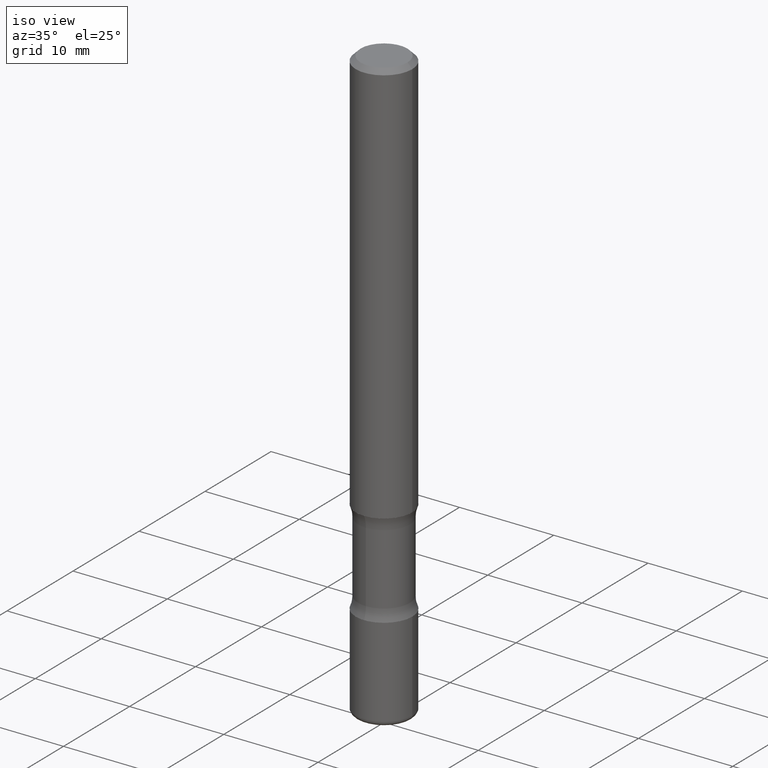
[diagram: clean part render]
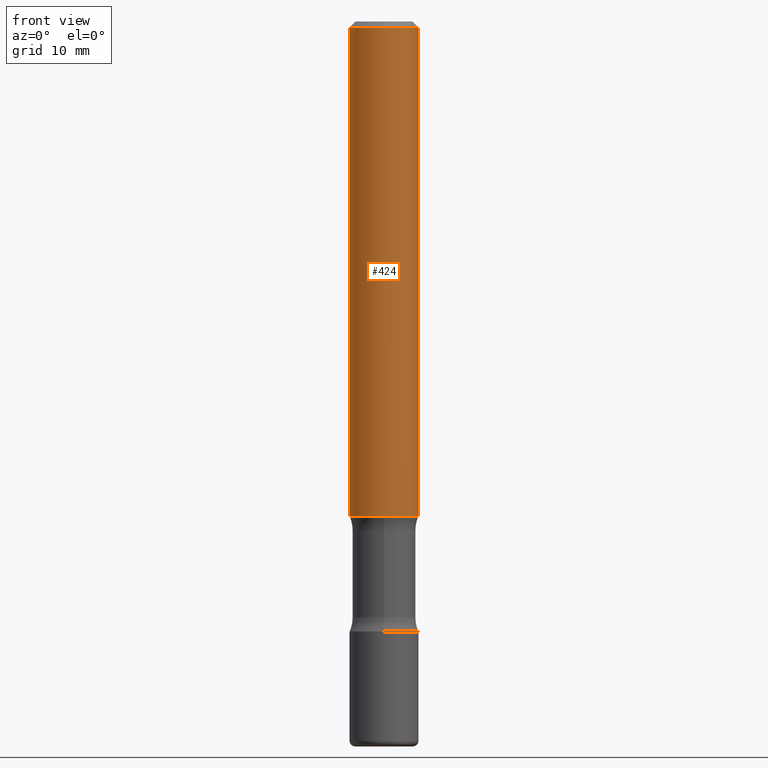
[diagram: tour spotlight — one face highlighted and labeled with its STEP entity id]
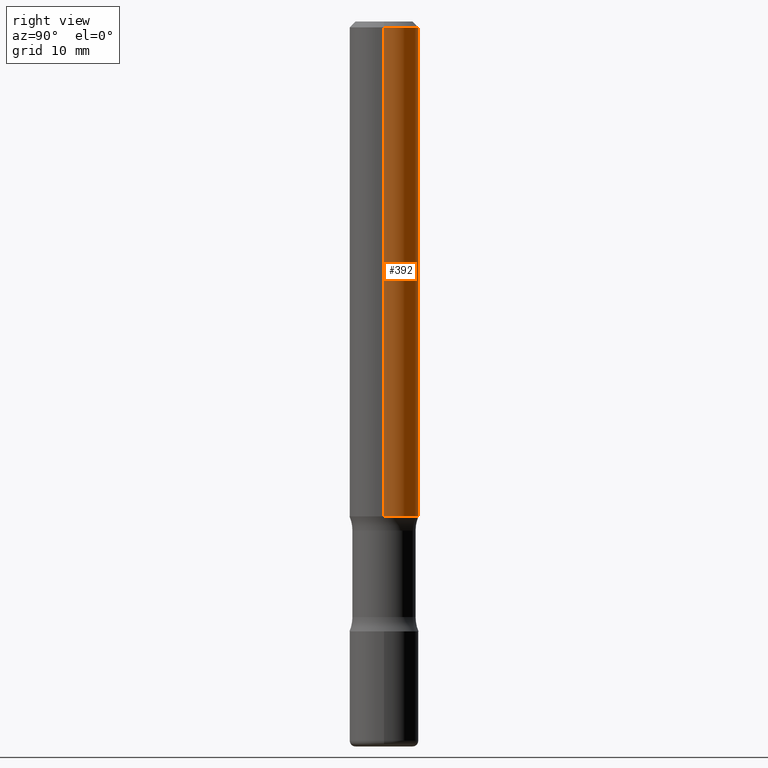
[diagram: tour spotlight — one face highlighted and labeled with its STEP entity id]
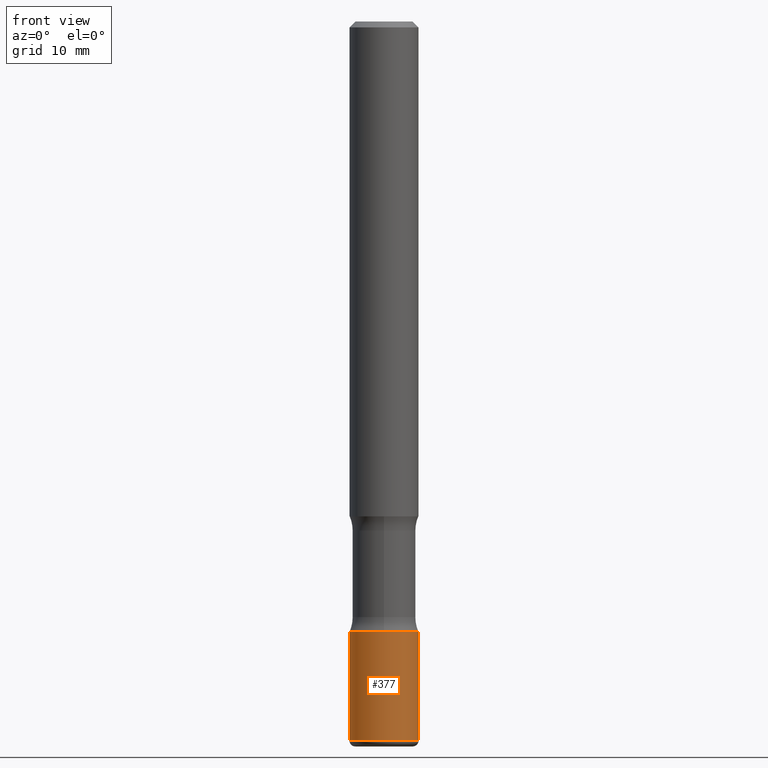
[diagram: tour spotlight — one face highlighted and labeled with its STEP entity id]
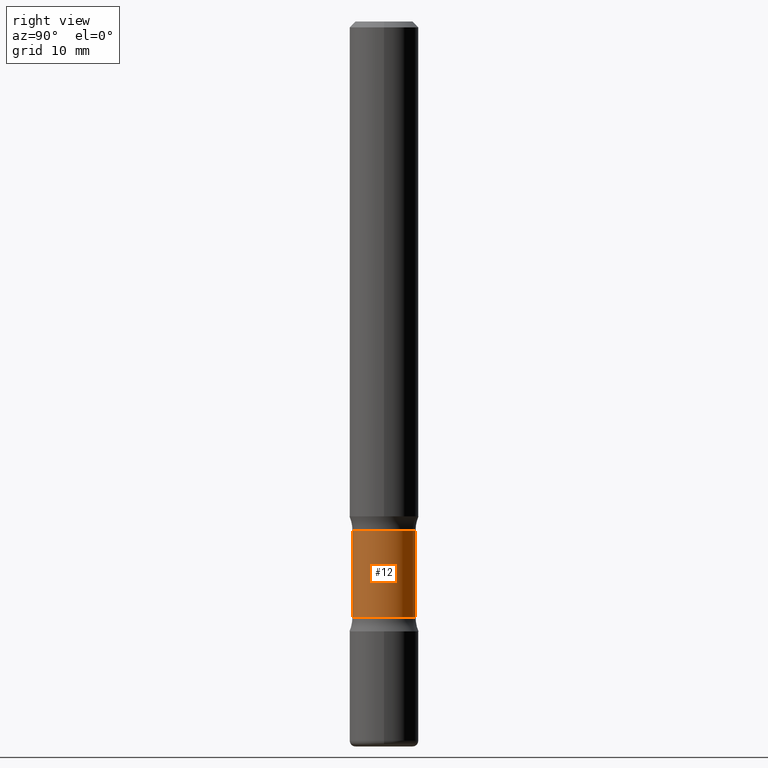
[diagram: tour spotlight — one face highlighted and labeled with its STEP entity id]
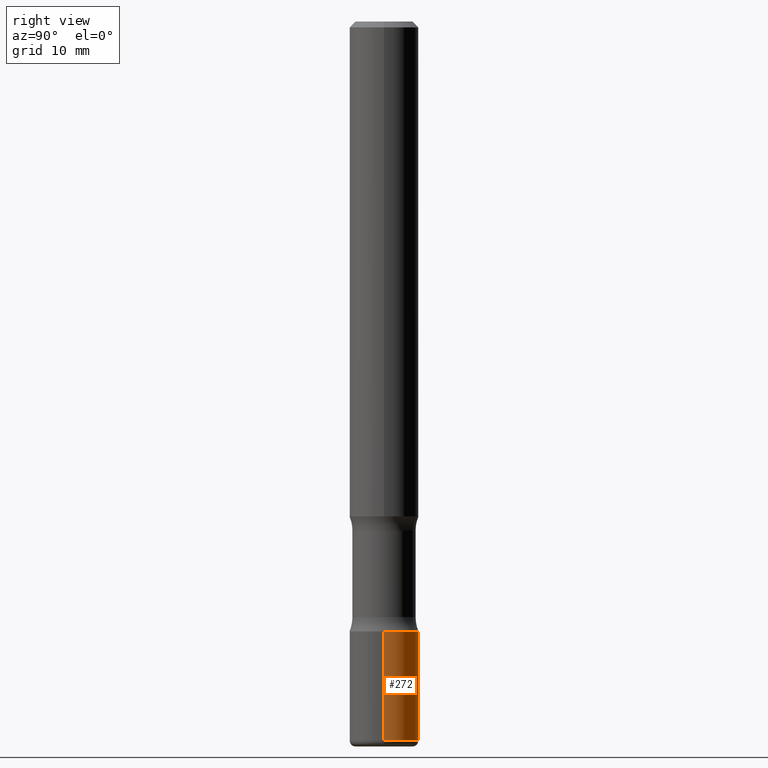
[diagram: tour spotlight — one face highlighted and labeled with its STEP entity id]
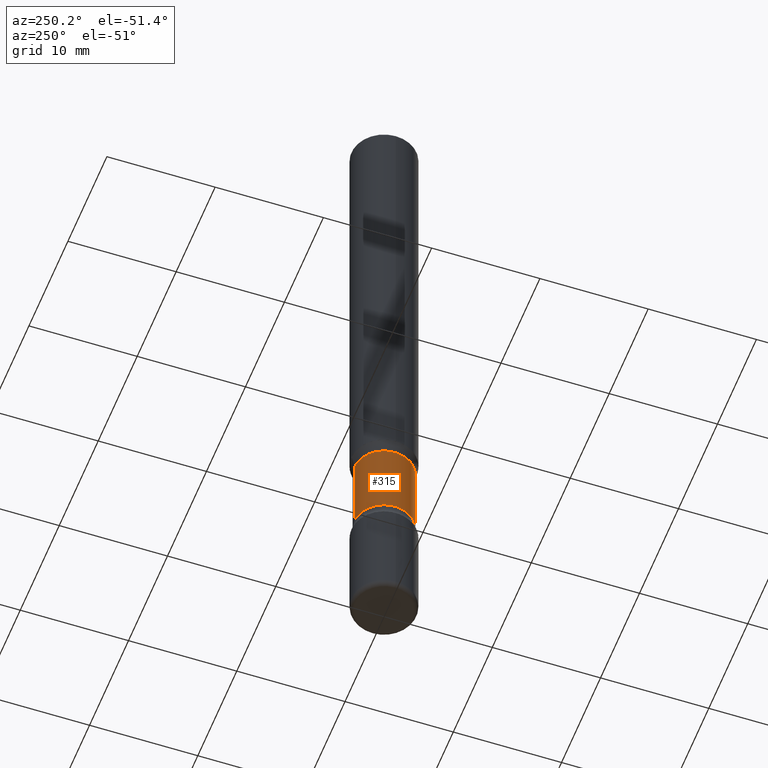
[diagram: tour spotlight — one face highlighted and labeled with its STEP entity id]
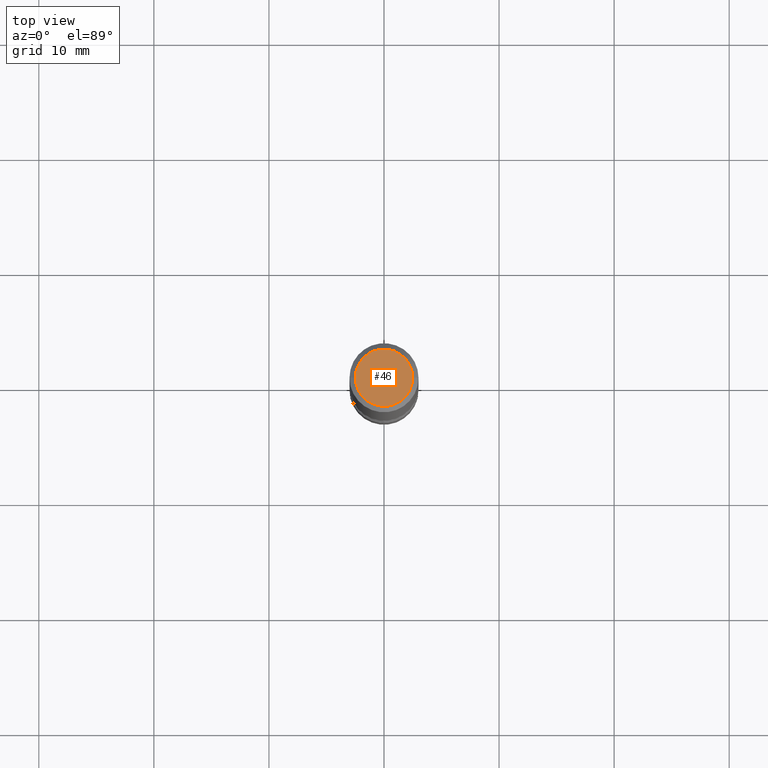
[diagram: tour spotlight — one face highlighted and labeled with its STEP entity id]
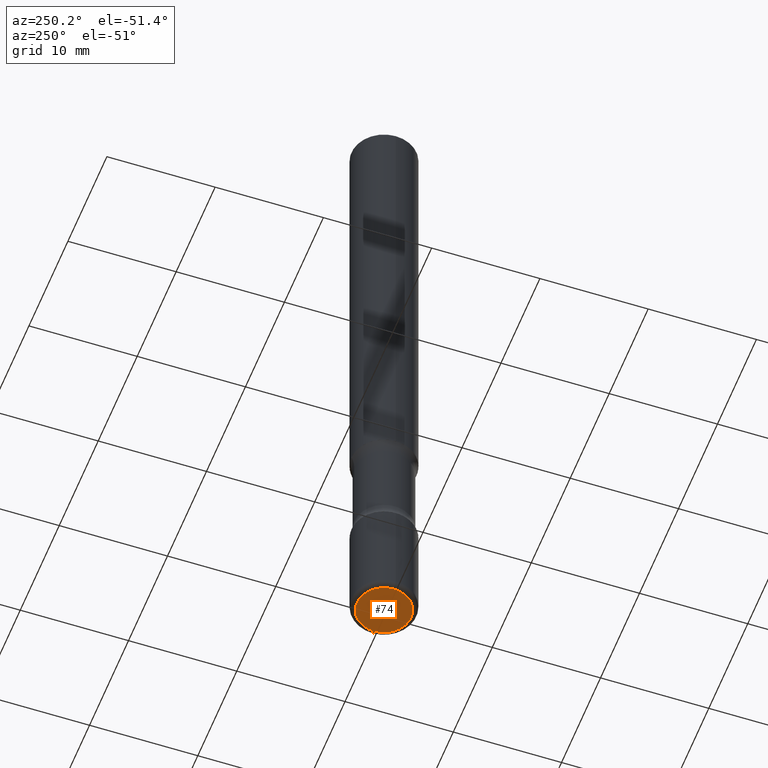
[diagram: tour spotlight — one face highlighted and labeled with its STEP entity id]
A machine part: a face-by-face anatomy tour. The part has 20 B-rep faces; the first image is the clean iso view, then the 8 largest visible faces are spotlighted one at a time (largest first), each with its STEP entity span.

Face 1 — front view, entity #424. In plain terms, the highlighted cylindrical surface (edge-blend (fillet) strip) has radius 2.9997 mm, axis along (-0, 0, 1).
Definition (entity closure, byte-faithful):
#21 = CARTESIAN_POINT ( 'NONE',  ( -0.1181000000000003713, 8.391509709326809581E-16, -5.809262341591062001E-30 ) ) ;
#25 = VERTEX_POINT ( 'NONE', #133 ) ;
#27 = LINE ( 'NONE', #21, #148 ) ;
#79 = DIRECTION ( 'NONE',  ( -2.445468806185136597E-29, 3.491481338843145583E-15, 1.000000000000000000 ) ) ;
#113 = LINE ( 'NONE', #332, #294 ) ;
#123 = CARTESIAN_POINT ( 'NONE',  ( 0.000000000000000000, 0.000000000000000000, 0.000000000000000000 ) ) ;
#126 = VERTEX_POINT ( 'NONE', #302 ) ;
#133 = CARTESIAN_POINT ( 'NONE',  ( 0.1181000000000005795, -6.735416650762312493E-15, -1.692899999999999849 ) ) ;
#148 = VECTOR ( 'NONE', #215, 39.37007874015748143 ) ;
#161 = CYLINDRICAL_SURFACE ( 'NONE', #460, 0.1181000000000003713 ) ;
#164 = CARTESIAN_POINT ( 'NONE',  ( 4.890937612370289799E-31, -6.982962677686315028E-17, -0.02000000000000006981 ) ) ;
#215 = DIRECTION ( 'NONE',  ( -2.445468806185136877E-29, 3.491481338843145188E-15, 1.000000000000000000 ) ) ;
#223 = DIRECTION ( 'NONE',  ( 1.000000000000000000, -6.982962677686267499E-15, 0.000000000000000000 ) ) ;
#257 = DIRECTION ( 'NONE',  ( -2.445468806185136877E-29, 3.491481338843145188E-15, 1.000000000000000000 ) ) ;
#284 = ORIENTED_EDGE ( 'NONE', *, *, #481, .T. ) ;
#294 = VECTOR ( 'NONE', #257, 39.37007874015748143 ) ;
#302 = CARTESIAN_POINT ( 'NONE',  ( 0.1181000000000001632, -8.800544403136822180E-16, -0.02000000000000006981 ) ) ;
#303 = FACE_OUTER_BOUND ( 'NONE', #327, .T. ) ;
#327 = EDGE_LOOP ( 'NONE', ( #507, #284, #329, #410 ) ) ;
#329 = ORIENTED_EDGE ( 'NONE', *, *, #380, .T. ) ;
#332 = CARTESIAN_POINT ( 'NONE',  ( 0.1181000000000003713, -8.246878922347507278E-16, 5.758764772215018657E-30 ) ) ;
#333 = VERTEX_POINT ( 'NONE', #464 ) ;
#366 = CARTESIAN_POINT ( 'NONE',  ( 4.139934141990817236E-29, -5.910728758527560286E-15, -1.692899999999999849 ) ) ;
#372 = AXIS2_PLACEMENT_3D ( 'NONE', #366, #506, #415 ) ;
#380 = EDGE_CURVE ( 'NONE', #25, #126, #113, .T. ) ;
#406 = CARTESIAN_POINT ( 'NONE',  ( -0.1181000000000005795, -2.151128221719523734E-15, -1.692899999999999849 ) ) ;
#407 = VERTEX_POINT ( 'NONE', #406 ) ;
#410 = ORIENTED_EDGE ( 'NONE', *, *, #451, .F. ) ;
#412 = CIRCLE ( 'NONE', #372, 0.1181000000000005795 ) ;
#415 = DIRECTION ( 'NONE',  ( 1.000000000000000000, -6.982962677686262766E-15, 0.000000000000000000 ) ) ;
#422 = DIRECTION ( 'NONE',  ( 1.000000000000000000, -6.982962677686266711E-15, 4.876176775795936353E-29 ) ) ;
#424 = ADVANCED_FACE ( 'NONE', ( #303 ), #161, .T. ) ;
#443 = EDGE_CURVE ( 'NONE', #407, #333, #27, .T. ) ;
#451 = EDGE_CURVE ( 'NONE', #333, #126, #541, .T. ) ;
#460 = AXIS2_PLACEMENT_3D ( 'NONE', #123, #79, #422 ) ;
#462 = AXIS2_PLACEMENT_3D ( 'NONE', #164, #498, #223 ) ;
#464 = CARTESIAN_POINT ( 'NONE',  ( -0.1181000000000001632, 7.548582654578862463E-16, -0.02000000000000006981 ) ) ;
#481 = EDGE_CURVE ( 'NONE', #407, #25, #412, .T. ) ;
#498 = DIRECTION ( 'NONE',  ( -2.445468806185136597E-29, 3.491481338843145583E-15, 1.000000000000000000 ) ) ;
#506 = DIRECTION ( 'NONE',  ( -2.445468806185136597E-29, 3.491481338843145583E-15, 1.000000000000000000 ) ) ;
#507 = ORIENTED_EDGE ( 'NONE', *, *, #443, .F. ) ;
#541 = CIRCLE ( 'NONE', #462, 0.1181000000000001632 ) ;

Face 2 — right view, entity #392. In plain terms, the highlighted cylindrical surface (edge-blend (fillet) strip) has radius 2.9997 mm, axis along (-0, 0, 1).
Definition (entity closure, byte-faithful):
#21 = CARTESIAN_POINT ( 'NONE',  ( -0.1181000000000003713, 8.391509709326809581E-16, -5.809262341591062001E-30 ) ) ;
#25 = VERTEX_POINT ( 'NONE', #133 ) ;
#27 = LINE ( 'NONE', #21, #148 ) ;
#43 = ORIENTED_EDGE ( 'NONE', *, *, #63, .F. ) ;
#63 = EDGE_CURVE ( 'NONE', #126, #333, #488, .T. ) ;
#69 = AXIS2_PLACEMENT_3D ( 'NONE', #459, #276, #192 ) ;
#90 = ORIENTED_EDGE ( 'NONE', *, *, #380, .F. ) ;
#96 = DIRECTION ( 'NONE',  ( 1.000000000000000000, -6.982962677686267499E-15, 0.000000000000000000 ) ) ;
#113 = LINE ( 'NONE', #332, #294 ) ;
#119 = AXIS2_PLACEMENT_3D ( 'NONE', #136, #475, #96 ) ;
#126 = VERTEX_POINT ( 'NONE', #302 ) ;
#133 = CARTESIAN_POINT ( 'NONE',  ( 0.1181000000000005795, -6.735416650762312493E-15, -1.692899999999999849 ) ) ;
#134 = CARTESIAN_POINT ( 'NONE',  ( 4.139934141990817236E-29, -5.910728758527560286E-15, -1.692899999999999849 ) ) ;
#136 = CARTESIAN_POINT ( 'NONE',  ( 4.890937612370289799E-31, -6.982962677686315028E-17, -0.02000000000000006981 ) ) ;
#148 = VECTOR ( 'NONE', #215, 39.37007874015748143 ) ;
#176 = DIRECTION ( 'NONE',  ( 1.000000000000000000, -6.982962677686262766E-15, 0.000000000000000000 ) ) ;
#192 = DIRECTION ( 'NONE',  ( 1.000000000000000000, -6.982962677686266711E-15, 4.876176775795936353E-29 ) ) ;
#215 = DIRECTION ( 'NONE',  ( -2.445468806185136877E-29, 3.491481338843145188E-15, 1.000000000000000000 ) ) ;
#225 = EDGE_CURVE ( 'NONE', #25, #407, #322, .T. ) ;
#247 = ORIENTED_EDGE ( 'NONE', *, *, #443, .T. ) ;
#257 = DIRECTION ( 'NONE',  ( -2.445468806185136877E-29, 3.491481338843145188E-15, 1.000000000000000000 ) ) ;
#276 = DIRECTION ( 'NONE',  ( -2.445468806185136597E-29, 3.491481338843145583E-15, 1.000000000000000000 ) ) ;
#291 = CYLINDRICAL_SURFACE ( 'NONE', #69, 0.1181000000000003713 ) ;
#294 = VECTOR ( 'NONE', #257, 39.37007874015748143 ) ;
#302 = CARTESIAN_POINT ( 'NONE',  ( 0.1181000000000001632, -8.800544403136822180E-16, -0.02000000000000006981 ) ) ;
#322 = CIRCLE ( 'NONE', #461, 0.1181000000000005795 ) ;
#332 = CARTESIAN_POINT ( 'NONE',  ( 0.1181000000000003713, -8.246878922347507278E-16, 5.758764772215018657E-30 ) ) ;
#333 = VERTEX_POINT ( 'NONE', #464 ) ;
#380 = EDGE_CURVE ( 'NONE', #25, #126, #113, .T. ) ;
#392 = ADVANCED_FACE ( 'NONE', ( #542 ), #291, .T. ) ;
#396 = DIRECTION ( 'NONE',  ( -2.445468806185136597E-29, 3.491481338843145583E-15, 1.000000000000000000 ) ) ;
#406 = CARTESIAN_POINT ( 'NONE',  ( -0.1181000000000005795, -2.151128221719523734E-15, -1.692899999999999849 ) ) ;
#407 = VERTEX_POINT ( 'NONE', #406 ) ;
#443 = EDGE_CURVE ( 'NONE', #407, #333, #27, .T. ) ;
#459 = CARTESIAN_POINT ( 'NONE',  ( 0.000000000000000000, 0.000000000000000000, 0.000000000000000000 ) ) ;
#461 = AXIS2_PLACEMENT_3D ( 'NONE', #134, #396, #176 ) ;
#464 = CARTESIAN_POINT ( 'NONE',  ( -0.1181000000000001632, 7.548582654578862463E-16, -0.02000000000000006981 ) ) ;
#475 = DIRECTION ( 'NONE',  ( -2.445468806185136597E-29, 3.491481338843145583E-15, 1.000000000000000000 ) ) ;
#488 = CIRCLE ( 'NONE', #119, 0.1181000000000001632 ) ;
#542 = FACE_OUTER_BOUND ( 'NONE', #558, .T. ) ;
#558 = EDGE_LOOP ( 'NONE', ( #560, #247, #43, #90 ) ) ;
#560 = ORIENTED_EDGE ( 'NONE', *, *, #225, .T. ) ;

Face 3 — front view, entity #377. In plain terms, the highlighted cylindrical surface (edge-blend (fillet) strip) has radius 2.9997 mm, axis along (-0, 0, 1).
Definition (entity closure, byte-faithful):
#30 = EDGE_CURVE ( 'NONE', #107, #532, #231, .T. ) ;
#32 = CARTESIAN_POINT ( 'NONE',  ( 0.1181000000000005101, -9.415826874592195569E-15, -2.460600000000000342 ) ) ;
#34 = FACE_OUTER_BOUND ( 'NONE', #544, .T. ) ;
#54 = LINE ( 'NONE', #326, #72 ) ;
#72 = VECTOR ( 'NONE', #482, 39.37007874015748143 ) ;
#75 = CARTESIAN_POINT ( 'NONE',  ( -0.1181000000000005101, -7.751988011424765165E-15, -2.460600000000000342 ) ) ;
#86 = CARTESIAN_POINT ( 'NONE',  ( 6.017320544499148018E-29, -8.591138982357445728E-15, -2.460600000000000342 ) ) ;
#87 = EDGE_CURVE ( 'NONE', #352, #107, #206, .T. ) ;
#89 = CARTESIAN_POINT ( 'NONE',  ( 5.102715210985908518E-29, -7.285324961630110572E-15, -2.086600000000001121 ) ) ;
#91 = AXIS2_PLACEMENT_3D ( 'NONE', #188, #373, #217 ) ;
#99 = CIRCLE ( 'NONE', #479, 0.1181000000000004407 ) ;
#107 = VERTEX_POINT ( 'NONE', #32 ) ;
#109 = ORIENTED_EDGE ( 'NONE', *, *, #185, .F. ) ;
#120 = ORIENTED_EDGE ( 'NONE', *, *, #328, .F. ) ;
#141 = DIRECTION ( 'NONE',  ( 1.000000000000000000, -6.982962677686262766E-15, 0.000000000000000000 ) ) ;
#143 = DIRECTION ( 'NONE',  ( -2.445468806185136877E-29, 3.491481338843145188E-15, 1.000000000000000000 ) ) ;
#145 = DIRECTION ( 'NONE',  ( 1.000000000000000000, -6.982962677686261189E-15, 0.000000000000000000 ) ) ;
#185 = EDGE_CURVE ( 'NONE', #416, #532, #99, .T. ) ;
#188 = CARTESIAN_POINT ( 'NONE',  ( 0.000000000000000000, 0.000000000000000000, 0.000000000000000000 ) ) ;
#206 = CIRCLE ( 'NONE', #259, 0.1181000000000006073 ) ;
#217 = DIRECTION ( 'NONE',  ( 1.000000000000000000, -6.982962677686266711E-15, 4.876176775795936353E-29 ) ) ;
#231 = LINE ( 'NONE', #393, #394 ) ;
#259 = AXIS2_PLACEMENT_3D ( 'NONE', #86, #521, #145 ) ;
#292 = ORIENTED_EDGE ( 'NONE', *, *, #87, .T. ) ;
#326 = CARTESIAN_POINT ( 'NONE',  ( -0.1181000000000005240, 8.391509709326820428E-16, -5.809262341591069708E-30 ) ) ;
#328 = EDGE_CURVE ( 'NONE', #352, #416, #54, .T. ) ;
#340 = CARTESIAN_POINT ( 'NONE',  ( -0.1181000000000004407, -7.099081001061096009E-15, -2.086600000000001121 ) ) ;
#344 = ORIENTED_EDGE ( 'NONE', *, *, #30, .T. ) ;
#345 = CARTESIAN_POINT ( 'NONE',  ( 0.1181000000000004407, -8.110012853864861990E-15, -2.086600000000001121 ) ) ;
#352 = VERTEX_POINT ( 'NONE', #75 ) ;
#373 = DIRECTION ( 'NONE',  ( -2.445468806185136597E-29, 3.491481338843145583E-15, 1.000000000000000000 ) ) ;
#377 = ADVANCED_FACE ( 'NONE', ( #34 ), #523, .T. ) ;
#393 = CARTESIAN_POINT ( 'NONE',  ( 0.1181000000000005240, -8.246878922347517139E-16, 5.758764772215026364E-30 ) ) ;
#394 = VECTOR ( 'NONE', #143, 39.37007874015748143 ) ;
#416 = VERTEX_POINT ( 'NONE', #340 ) ;
#479 = AXIS2_PLACEMENT_3D ( 'NONE', #89, #510, #141 ) ;
#482 = DIRECTION ( 'NONE',  ( -2.445468806185136877E-29, 3.491481338843145188E-15, 1.000000000000000000 ) ) ;
#510 = DIRECTION ( 'NONE',  ( -2.445468806185136597E-29, 3.491481338843145583E-15, 1.000000000000000000 ) ) ;
#521 = DIRECTION ( 'NONE',  ( -2.445468806185136597E-29, 3.491481338843145583E-15, 1.000000000000000000 ) ) ;
#523 = CYLINDRICAL_SURFACE ( 'NONE', #91, 0.1181000000000005240 ) ;
#532 = VERTEX_POINT ( 'NONE', #345 ) ;
#544 = EDGE_LOOP ( 'NONE', ( #120, #292, #344, #109 ) ) ;

Face 4 — right view, entity #12. In plain terms, the highlighted cylindrical surface (edge-blend (fillet) strip) has radius 2.7445 mm, axis along (0, -0, -1).
Definition (entity closure, byte-faithful):
#1 = CARTESIAN_POINT ( 'NONE',  ( -7.412768086591543542E-16, -0.1080500000000088057, -2.480299999999999727 ) ) ;
#5 = EDGE_CURVE ( 'NONE', #157, #156, #130, .T. ) ;
#10 = DIRECTION ( 'NONE',  ( 1.739927459713082666E-29, -4.501856703910724248E-15, -1.000000000000000000 ) ) ;
#12 = ADVANCED_FACE ( 'NONE', ( #433 ), #527, .T. ) ;
#18 = ORIENTED_EDGE ( 'NONE', *, *, #505, .F. ) ;
#26 = CARTESIAN_POINT ( 'NONE',  ( -7.757508110979694300E-16, -0.1080500000000053085, -1.742007000519274706 ) ) ;
#58 = VERTEX_POINT ( 'NONE', #184 ) ;
#114 = DIRECTION ( 'NONE',  ( 1.739927459713082666E-29, -4.501856703910724248E-15, -1.000000000000000000 ) ) ;
#130 = CIRCLE ( 'NONE', #218, 0.1080499999999995631 ) ;
#156 = VERTEX_POINT ( 'NONE', #26 ) ;
#157 = VERTEX_POINT ( 'NONE', #222 ) ;
#170 = LINE ( 'NONE', #543, #200 ) ;
#184 = CARTESIAN_POINT ( 'NONE',  ( 7.545091173240505591E-16, 0.1080499999999928323, -2.037492999480726930 ) ) ;
#190 = DIRECTION ( 'NONE',  ( 1.739927459713082666E-29, -4.501856703910724248E-15, -1.000000000000000000 ) ) ;
#191 = CARTESIAN_POINT ( 'NONE',  ( 4.503148388764497858E-29, -5.734016656797101512E-15, -1.742007000519275373 ) ) ;
#200 = VECTOR ( 'NONE', #114, 39.37007874015748143 ) ;
#202 = DIRECTION ( 'NONE',  ( 6.982962677686265922E-15, 1.000000000000000000, -5.056636730521562350E-15 ) ) ;
#208 = VERTEX_POINT ( 'NONE', #273 ) ;
#213 = EDGE_LOOP ( 'NONE', ( #308, #503, #18, #374 ) ) ;
#218 = AXIS2_PLACEMENT_3D ( 'NONE', #191, #10, #202 ) ;
#222 = CARTESIAN_POINT ( 'NONE',  ( 7.545091173240430650E-16, 0.1080499999999938315, -1.742007000519275817 ) ) ;
#236 = CARTESIAN_POINT ( 'NONE',  ( 5.787724651874947150E-29, -9.057705945959761462E-15, -2.480300000000000171 ) ) ;
#265 = EDGE_CURVE ( 'NONE', #156, #208, #391, .T. ) ;
#273 = CARTESIAN_POINT ( 'NONE',  ( -7.757508110979665703E-16, -0.1080500000000069738, -2.037492999480725597 ) ) ;
#308 = ORIENTED_EDGE ( 'NONE', *, *, #5, .T. ) ;
#309 = DIRECTION ( 'NONE',  ( 6.982962677686265922E-15, 1.000000000000000000, -5.056636730521546572E-15 ) ) ;
#348 = VECTOR ( 'NONE', #190, 39.37007874015748143 ) ;
#353 = CARTESIAN_POINT ( 'NONE',  ( 5.017272592318278303E-29, -7.064252282133466374E-15, -2.037492999480726041 ) ) ;
#374 = ORIENTED_EDGE ( 'NONE', *, *, #375, .F. ) ;
#375 = EDGE_CURVE ( 'NONE', #157, #58, #170, .T. ) ;
#383 = DIRECTION ( 'NONE',  ( 1.739927459713082666E-29, -4.501856703910724248E-15, -1.000000000000000000 ) ) ;
#391 = LINE ( 'NONE', #1, #348 ) ;
#433 = FACE_OUTER_BOUND ( 'NONE', #213, .T. ) ;
#467 = CIRCLE ( 'NONE', #492, 0.1080499999999999100 ) ;
#473 = AXIS2_PLACEMENT_3D ( 'NONE', #236, #483, #517 ) ;
#483 = DIRECTION ( 'NONE',  ( 1.739927459713082666E-29, -4.501856703910724248E-15, -1.000000000000000000 ) ) ;
#492 = AXIS2_PLACEMENT_3D ( 'NONE', #353, #383, #309 ) ;
#503 = ORIENTED_EDGE ( 'NONE', *, *, #265, .T. ) ;
#505 = EDGE_CURVE ( 'NONE', #58, #208, #467, .T. ) ;
#517 = DIRECTION ( 'NONE',  ( 6.982962677686265133E-15, 1.000000000000000000, -5.056636730521553672E-15 ) ) ;
#527 = CYLINDRICAL_SURFACE ( 'NONE', #473, 0.1080499999999997573 ) ;
#543 = CARTESIAN_POINT ( 'NONE',  ( 7.545091173240571659E-16, 0.1080499999999907090, -2.480300000000001059 ) ) ;

Face 5 — right view, entity #272. In plain terms, the highlighted cylindrical surface (edge-blend (fillet) strip) has radius 2.9997 mm, axis along (-0, 0, 1).
Definition (entity closure, byte-faithful):
#30 = EDGE_CURVE ( 'NONE', #107, #532, #231, .T. ) ;
#32 = CARTESIAN_POINT ( 'NONE',  ( 0.1181000000000005101, -9.415826874592195569E-15, -2.460600000000000342 ) ) ;
#39 = CYLINDRICAL_SURFACE ( 'NONE', #480, 0.1181000000000005240 ) ;
#54 = LINE ( 'NONE', #326, #72 ) ;
#72 = VECTOR ( 'NONE', #482, 39.37007874015748143 ) ;
#75 = CARTESIAN_POINT ( 'NONE',  ( -0.1181000000000005101, -7.751988011424765165E-15, -2.460600000000000342 ) ) ;
#78 = CARTESIAN_POINT ( 'NONE',  ( 6.017320544499148018E-29, -8.591138982357445728E-15, -2.460600000000000342 ) ) ;
#82 = DIRECTION ( 'NONE',  ( 1.000000000000000000, -6.982962677686266711E-15, 4.876176775795936353E-29 ) ) ;
#85 = FACE_OUTER_BOUND ( 'NONE', #485, .T. ) ;
#95 = DIRECTION ( 'NONE',  ( -2.445468806185136597E-29, 3.491481338843145583E-15, 1.000000000000000000 ) ) ;
#100 = CIRCLE ( 'NONE', #235, 0.1181000000000004407 ) ;
#107 = VERTEX_POINT ( 'NONE', #32 ) ;
#117 = AXIS2_PLACEMENT_3D ( 'NONE', #78, #474, #261 ) ;
#143 = DIRECTION ( 'NONE',  ( -2.445468806185136877E-29, 3.491481338843145188E-15, 1.000000000000000000 ) ) ;
#172 = ORIENTED_EDGE ( 'NONE', *, *, #328, .T. ) ;
#231 = LINE ( 'NONE', #393, #394 ) ;
#235 = AXIS2_PLACEMENT_3D ( 'NONE', #427, #491, #253 ) ;
#253 = DIRECTION ( 'NONE',  ( 1.000000000000000000, -6.982962677686262766E-15, 0.000000000000000000 ) ) ;
#261 = DIRECTION ( 'NONE',  ( 1.000000000000000000, -6.982962677686261189E-15, 0.000000000000000000 ) ) ;
#272 = ADVANCED_FACE ( 'NONE', ( #85 ), #39, .T. ) ;
#296 = CIRCLE ( 'NONE', #117, 0.1181000000000006073 ) ;
#326 = CARTESIAN_POINT ( 'NONE',  ( -0.1181000000000005240, 8.391509709326820428E-16, -5.809262341591069708E-30 ) ) ;
#328 = EDGE_CURVE ( 'NONE', #352, #416, #54, .T. ) ;
#340 = CARTESIAN_POINT ( 'NONE',  ( -0.1181000000000004407, -7.099081001061096009E-15, -2.086600000000001121 ) ) ;
#345 = CARTESIAN_POINT ( 'NONE',  ( 0.1181000000000004407, -8.110012853864861990E-15, -2.086600000000001121 ) ) ;
#350 = ORIENTED_EDGE ( 'NONE', *, *, #489, .T. ) ;
#352 = VERTEX_POINT ( 'NONE', #75 ) ;
#393 = CARTESIAN_POINT ( 'NONE',  ( 0.1181000000000005240, -8.246878922347517139E-16, 5.758764772215026364E-30 ) ) ;
#394 = VECTOR ( 'NONE', #143, 39.37007874015748143 ) ;
#413 = ORIENTED_EDGE ( 'NONE', *, *, #431, .F. ) ;
#416 = VERTEX_POINT ( 'NONE', #340 ) ;
#427 = CARTESIAN_POINT ( 'NONE',  ( 5.102715210985908518E-29, -7.285324961630110572E-15, -2.086600000000001121 ) ) ;
#431 = EDGE_CURVE ( 'NONE', #532, #416, #100, .T. ) ;
#436 = CARTESIAN_POINT ( 'NONE',  ( 0.000000000000000000, 0.000000000000000000, 0.000000000000000000 ) ) ;
#474 = DIRECTION ( 'NONE',  ( -2.445468806185136597E-29, 3.491481338843145583E-15, 1.000000000000000000 ) ) ;
#480 = AXIS2_PLACEMENT_3D ( 'NONE', #436, #95, #82 ) ;
#482 = DIRECTION ( 'NONE',  ( -2.445468806185136877E-29, 3.491481338843145188E-15, 1.000000000000000000 ) ) ;
#485 = EDGE_LOOP ( 'NONE', ( #350, #172, #413, #535 ) ) ;
#489 = EDGE_CURVE ( 'NONE', #107, #352, #296, .T. ) ;
#491 = DIRECTION ( 'NONE',  ( -2.445468806185136597E-29, 3.491481338843145583E-15, 1.000000000000000000 ) ) ;
#532 = VERTEX_POINT ( 'NONE', #345 ) ;
#535 = ORIENTED_EDGE ( 'NONE', *, *, #30, .F. ) ;

Face 6 — auxiliary view, entity #315. In plain terms, the highlighted cylindrical surface (edge-blend (fillet) strip) has radius 2.7445 mm, axis along (0, -0, -1).
Definition (entity closure, byte-faithful):
#1 = CARTESIAN_POINT ( 'NONE',  ( -7.412768086591543542E-16, -0.1080500000000088057, -2.480299999999999727 ) ) ;
#13 = ORIENTED_EDGE ( 'NONE', *, *, #375, .T. ) ;
#26 = CARTESIAN_POINT ( 'NONE',  ( -7.757508110979694300E-16, -0.1080500000000053085, -1.742007000519274706 ) ) ;
#50 = AXIS2_PLACEMENT_3D ( 'NONE', #379, #331, #420 ) ;
#53 = CARTESIAN_POINT ( 'NONE',  ( 5.787724651874947150E-29, -9.057705945959761462E-15, -2.480300000000000171 ) ) ;
#58 = VERTEX_POINT ( 'NONE', #184 ) ;
#65 = ORIENTED_EDGE ( 'NONE', *, *, #265, .F. ) ;
#66 = FACE_OUTER_BOUND ( 'NONE', #105, .T. ) ;
#105 = EDGE_LOOP ( 'NONE', ( #65, #519, #13, #537 ) ) ;
#114 = DIRECTION ( 'NONE',  ( 1.739927459713082666E-29, -4.501856703910724248E-15, -1.000000000000000000 ) ) ;
#127 = DIRECTION ( 'NONE',  ( 1.739927459713082666E-29, -4.501856703910724248E-15, -1.000000000000000000 ) ) ;
#140 = EDGE_CURVE ( 'NONE', #208, #58, #540, .T. ) ;
#155 = CIRCLE ( 'NONE', #437, 0.1080499999999995631 ) ;
#156 = VERTEX_POINT ( 'NONE', #26 ) ;
#157 = VERTEX_POINT ( 'NONE', #222 ) ;
#170 = LINE ( 'NONE', #543, #200 ) ;
#184 = CARTESIAN_POINT ( 'NONE',  ( 7.545091173240505591E-16, 0.1080499999999928323, -2.037492999480726930 ) ) ;
#190 = DIRECTION ( 'NONE',  ( 1.739927459713082666E-29, -4.501856703910724248E-15, -1.000000000000000000 ) ) ;
#200 = VECTOR ( 'NONE', #114, 39.37007874015748143 ) ;
#208 = VERTEX_POINT ( 'NONE', #273 ) ;
#210 = DIRECTION ( 'NONE',  ( 6.982962677686265922E-15, 1.000000000000000000, -5.056636730521562350E-15 ) ) ;
#220 = CARTESIAN_POINT ( 'NONE',  ( 4.503148388764497858E-29, -5.734016656797101512E-15, -1.742007000519275373 ) ) ;
#222 = CARTESIAN_POINT ( 'NONE',  ( 7.545091173240430650E-16, 0.1080499999999938315, -1.742007000519275817 ) ) ;
#250 = AXIS2_PLACEMENT_3D ( 'NONE', #53, #398, #364 ) ;
#265 = EDGE_CURVE ( 'NONE', #156, #208, #391, .T. ) ;
#273 = CARTESIAN_POINT ( 'NONE',  ( -7.757508110979665703E-16, -0.1080500000000069738, -2.037492999480725597 ) ) ;
#315 = ADVANCED_FACE ( 'NONE', ( #66 ), #520, .T. ) ;
#331 = DIRECTION ( 'NONE',  ( 1.739927459713082666E-29, -4.501856703910724248E-15, -1.000000000000000000 ) ) ;
#348 = VECTOR ( 'NONE', #190, 39.37007874015748143 ) ;
#364 = DIRECTION ( 'NONE',  ( 6.982962677686265133E-15, 1.000000000000000000, -5.056636730521553672E-15 ) ) ;
#365 = EDGE_CURVE ( 'NONE', #156, #157, #155, .T. ) ;
#375 = EDGE_CURVE ( 'NONE', #157, #58, #170, .T. ) ;
#379 = CARTESIAN_POINT ( 'NONE',  ( 5.017272592318278303E-29, -7.064252282133466374E-15, -2.037492999480726041 ) ) ;
#391 = LINE ( 'NONE', #1, #348 ) ;
#398 = DIRECTION ( 'NONE',  ( 1.739927459713082666E-29, -4.501856703910724248E-15, -1.000000000000000000 ) ) ;
#420 = DIRECTION ( 'NONE',  ( 6.982962677686265922E-15, 1.000000000000000000, -5.056636730521546572E-15 ) ) ;
#437 = AXIS2_PLACEMENT_3D ( 'NONE', #220, #127, #210 ) ;
#519 = ORIENTED_EDGE ( 'NONE', *, *, #365, .T. ) ;
#520 = CYLINDRICAL_SURFACE ( 'NONE', #250, 0.1080499999999997573 ) ;
#537 = ORIENTED_EDGE ( 'NONE', *, *, #140, .F. ) ;
#540 = CIRCLE ( 'NONE', #50, 0.1080499999999999100 ) ;
#543 = CARTESIAN_POINT ( 'NONE',  ( 7.545091173240571659E-16, 0.1080499999999907090, -2.480300000000001059 ) ) ;

Face 7 — top view, entity #46. In plain terms, the highlighted planar face has unit normal (0, -0, -1).
Definition (entity closure, byte-faithful):
#46 = ADVANCED_FACE ( 'NONE', ( #522 ), #318, .F. ) ;
#70 = EDGE_CURVE ( 'NONE', #551, #187, #199, .T. ) ;
#115 = DIRECTION ( 'NONE',  ( 2.438088387897960049E-29, -3.491481338843145188E-15, -1.000000000000000000 ) ) ;
#116 = ORIENTED_EDGE ( 'NONE', *, *, #70, .T. ) ;
#146 = CARTESIAN_POINT ( 'NONE',  ( 6.850286386810237370E-16, 0.09810000000000014542, -3.595883693009147092E-16 ) ) ;
#168 = DIRECTION ( 'NONE',  ( -2.445468806185136597E-29, 3.491481338843145583E-15, 1.000000000000000000 ) ) ;
#171 = DIRECTION ( 'NONE',  ( 1.000000000000000000, -6.982962677686265922E-15, 4.877161320636760066E-29 ) ) ;
#183 = CARTESIAN_POINT ( 'NONE',  ( 0.09810000000000014542, -7.765346469475353361E-16, -3.414809992079818112E-17 ) ) ;
#187 = VERTEX_POINT ( 'NONE', #183 ) ;
#199 = CIRCLE ( 'NONE', #494, 0.09810000000000014542 ) ;
#212 = ORIENTED_EDGE ( 'NONE', *, *, #404, .T. ) ;
#227 = DIRECTION ( 'NONE',  ( -1.000000000000000000, 6.982962677686265922E-15, -4.876176775795935793E-29 ) ) ;
#248 = CARTESIAN_POINT ( 'NONE',  ( -0.09810000000000014542, 7.199434520694548930E-16, -3.414809992080820212E-17 ) ) ;
#277 = CARTESIAN_POINT ( 'NONE',  ( 8.350811314681758556E-46, -1.192274536304357760E-31, -3.414809992080329023E-17 ) ) ;
#312 = DIRECTION ( 'NONE',  ( 1.000000000000000000, -6.982962677686265922E-15, 4.877161320636760066E-29 ) ) ;
#318 = PLANE ( 'NONE',  #449 ) ;
#321 = CIRCLE ( 'NONE', #450, 0.09810000000000014542 ) ;
#330 = EDGE_LOOP ( 'NONE', ( #116, #212 ) ) ;
#404 = EDGE_CURVE ( 'NONE', #187, #551, #321, .T. ) ;
#447 = DIRECTION ( 'NONE',  ( -2.445468806185136597E-29, 3.491481338843145583E-15, 1.000000000000000000 ) ) ;
#449 = AXIS2_PLACEMENT_3D ( 'NONE', #146, #115, #227 ) ;
#450 = AXIS2_PLACEMENT_3D ( 'NONE', #549, #168, #171 ) ;
#494 = AXIS2_PLACEMENT_3D ( 'NONE', #277, #447, #312 ) ;
#522 = FACE_OUTER_BOUND ( 'NONE', #330, .T. ) ;
#549 = CARTESIAN_POINT ( 'NONE',  ( 8.350811314681758556E-46, -1.192274536304357760E-31, -3.414809992080329023E-17 ) ) ;
#551 = VERTEX_POINT ( 'NONE', #248 ) ;

Face 8 — auxiliary view, entity #74. In plain terms, the highlighted planar face has unit normal (0, -0, -1).
Definition (entity closure, byte-faithful):
#2 = AXIS2_PLACEMENT_3D ( 'NONE', #320, #83, #263 ) ;
#4 = PLANE ( 'NONE',  #230 ) ;
#22 = CARTESIAN_POINT ( 'NONE',  ( -0.09840000000000045932, -7.856367562084738439E-15, -2.480300000000000171 ) ) ;
#41 = DIRECTION ( 'NONE',  ( 2.438088387897960049E-29, -3.491481338843145188E-15, -1.000000000000000000 ) ) ;
#47 = EDGE_LOOP ( 'NONE', ( #274, #64 ) ) ;
#56 = EDGE_CURVE ( 'NONE', #455, #122, #362, .T. ) ;
#64 = ORIENTED_EDGE ( 'NONE', *, *, #104, .F. ) ;
#74 = ADVANCED_FACE ( 'NONE', ( #471 ), #4, .T. ) ;
#83 = DIRECTION ( 'NONE',  ( -2.445468806185136597E-29, 3.491481338843145583E-15, 1.000000000000000000 ) ) ;
#92 = DIRECTION ( 'NONE',  ( 1.000000000000000000, -6.982962677686268288E-15, 0.000000000000000000 ) ) ;
#104 = EDGE_CURVE ( 'NONE', #122, #455, #306, .T. ) ;
#122 = VERTEX_POINT ( 'NONE', #22 ) ;
#193 = CARTESIAN_POINT ( 'NONE',  ( 6.065496279980994755E-29, -8.659921164732655335E-15, -2.480300000000000171 ) ) ;
#230 = AXIS2_PLACEMENT_3D ( 'NONE', #193, #41, #359 ) ;
#234 = AXIS2_PLACEMENT_3D ( 'NONE', #397, #442, #92 ) ;
#263 = DIRECTION ( 'NONE',  ( 1.000000000000000000, -6.982962677686268288E-15, 0.000000000000000000 ) ) ;
#274 = ORIENTED_EDGE ( 'NONE', *, *, #56, .F. ) ;
#300 = CARTESIAN_POINT ( 'NONE',  ( 0.09840000000000045932, -9.347044692216987539E-15, -2.480300000000000171 ) ) ;
#306 = CIRCLE ( 'NONE', #2, 0.09840000000000045932 ) ;
#320 = CARTESIAN_POINT ( 'NONE',  ( 6.065496279980994755E-29, -8.659921164732655335E-15, -2.480300000000000171 ) ) ;
#359 = DIRECTION ( 'NONE',  ( -1.000000000000000000, 6.982962677686265922E-15, -4.876176775795935793E-29 ) ) ;
#362 = CIRCLE ( 'NONE', #234, 0.09840000000000045932 ) ;
#397 = CARTESIAN_POINT ( 'NONE',  ( 6.065496279980994755E-29, -8.659921164732655335E-15, -2.480300000000000171 ) ) ;
#442 = DIRECTION ( 'NONE',  ( -2.445468806185136597E-29, 3.491481338843145583E-15, 1.000000000000000000 ) ) ;
#455 = VERTEX_POINT ( 'NONE', #300 ) ;
#471 = FACE_OUTER_BOUND ( 'NONE', #47, .T. ) ;